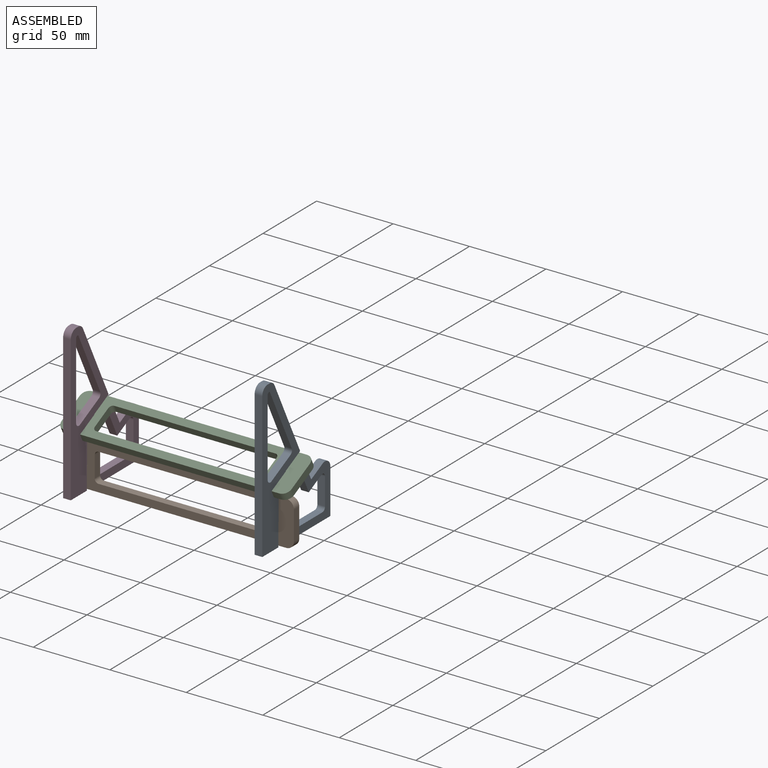
[diagram: assembled view]
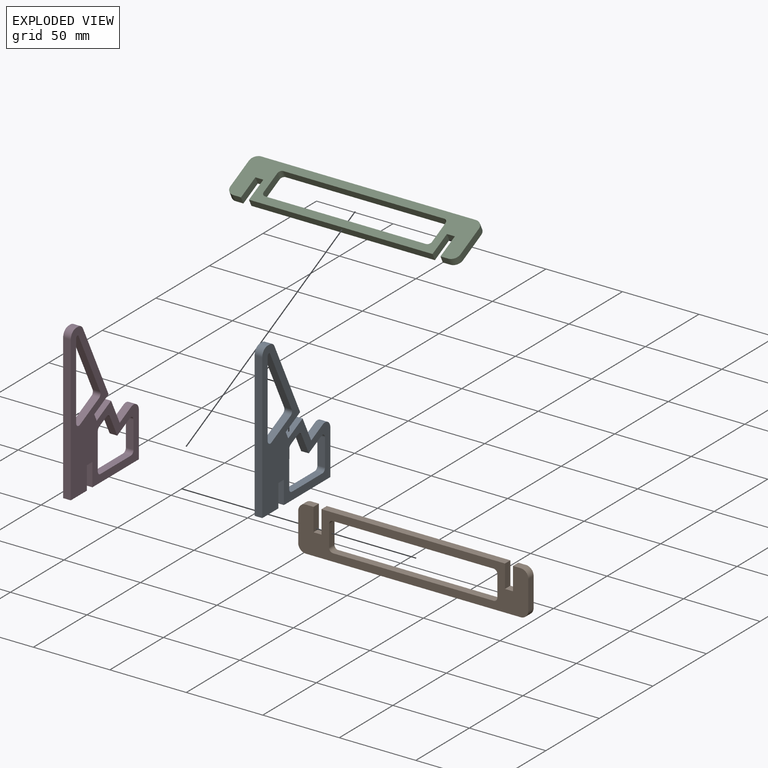
[diagram: exploded view]
GUIDED TOUR — MATED ASSEMBLY (Onshape document 1cfadd9997c3e9e91f9deba0, AutoMate assembly 1cfadd9997c3e9e91f9deba0_18e21f52ee919022d01cf52c_833649d1fe2a476c0644415b_default)

This assembly has 4 components, labeled P0..P3 below (a component is one placed occurrence of a part; the same part can appear more than once), held together by 3 mates. A mate is a constraint between two components; its type names the relative motion it leaves free:
  FASTENED — locks the two components together rigidly (no relative motion).
Axis/direction vectors are unit vectors and 'through' points are millimeter coordinates, both in the assembly's world frame.

MATES
  1. FASTENED "Fest 2": P0 <-> P1, direction (0.000, 0.000, -1.000) through (85.96, -73.56, 51.75) mm
  2. FASTENED "Fest 1": P1 <-> P3, direction (0.000, 0.000, 1.000) through (-39.24, -73.56, 51.75) mm
  3. FASTENED "Fest 3": P3 <-> P2, direction (0.000, 0.895, 0.446) through (-39.24, -68.11, 76.89) mm

ASSEMBLY ORDER
  1. P3 — the base component [order verified]
  2. P0 [order verified]
  3. P2 [order verified]
  4. P1 [order verified]
Order-tag legend:
  [order verified] — this step's position reverses a verified removal order: the component was checked to insert without passing through the ones already placed.

Of the 4 components, 2 carry the full construction recipe — the FeatureScript program that regenerates the part's solid from scratch; the rest are supplied as boundary geometry only.
Each toured component is shown spotlighted twice — in the assembled view, then in the exploded view, where a leader line traces a displaced component back to its assembled socket (saturated green if recipe-attached, orange if geometry-only; every other component desaturated gray) — followed by its recipe or geometry summary and the mates that hold it.
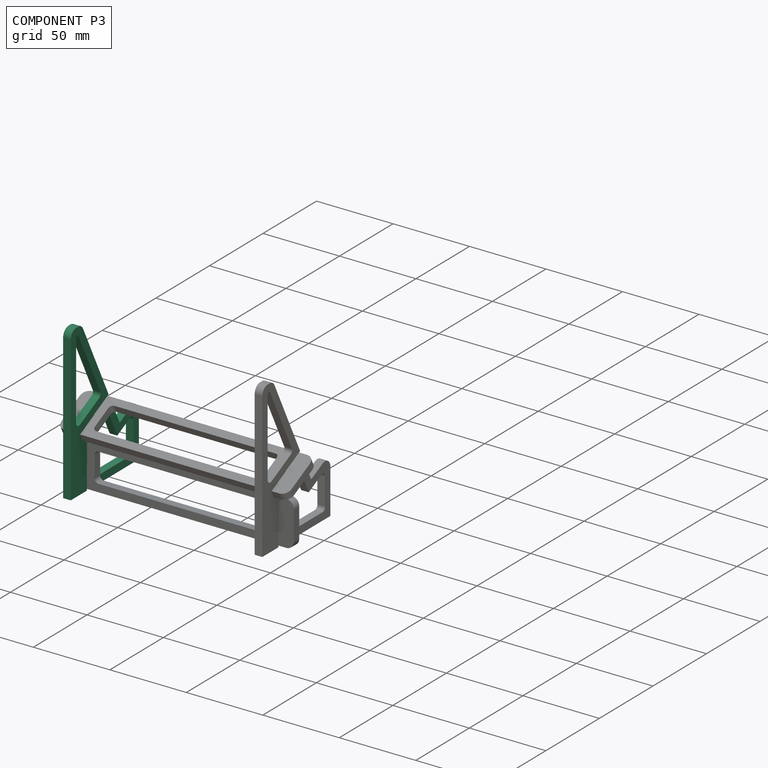
[diagram: component P3 — assembled]
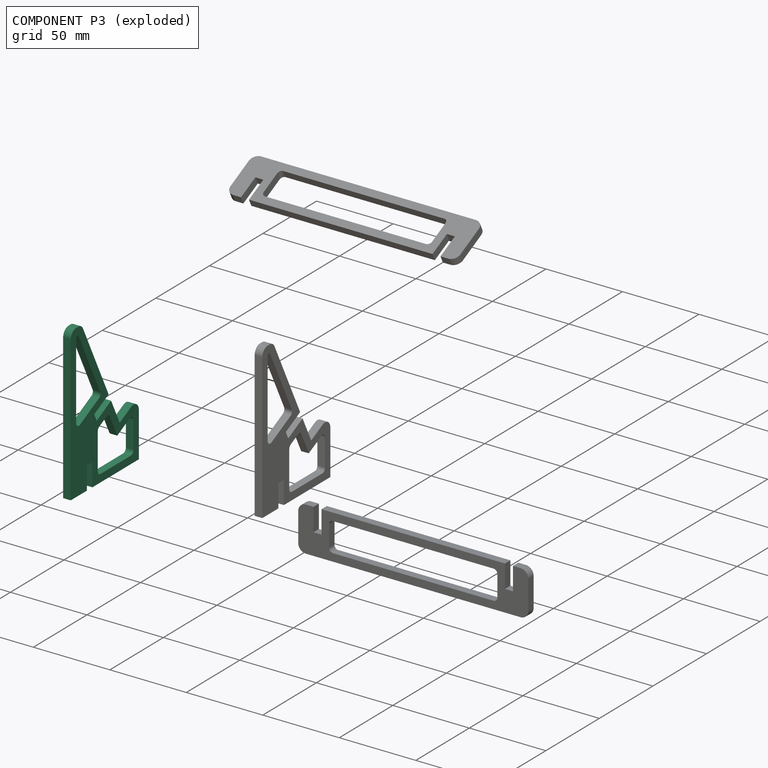
[diagram: component P3 — exploded]
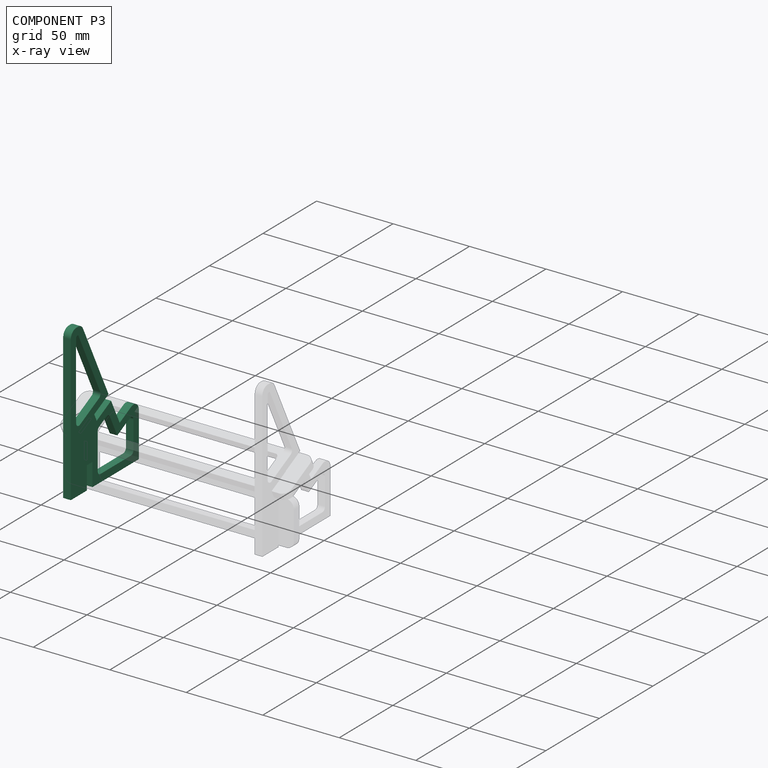
[diagram: component P3 — x-ray view]
COMPONENT P3 — same part as P0 (CADFS 00387855); its construction recipe is shown at P0.
Held by: FASTENED mate "Fest 1" to P1; FASTENED mate "Fest 3" to P2.
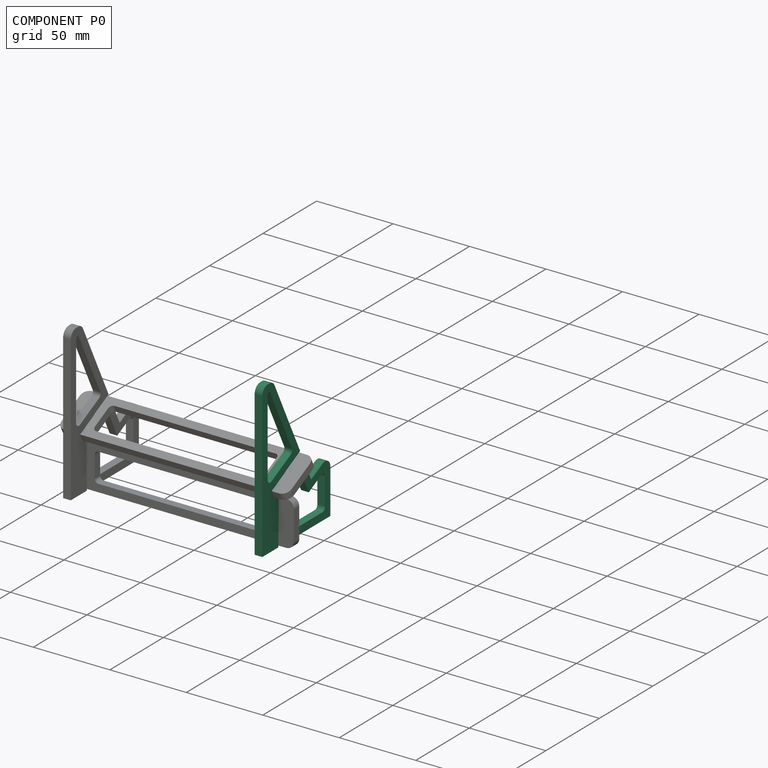
[diagram: component P0 — assembled]
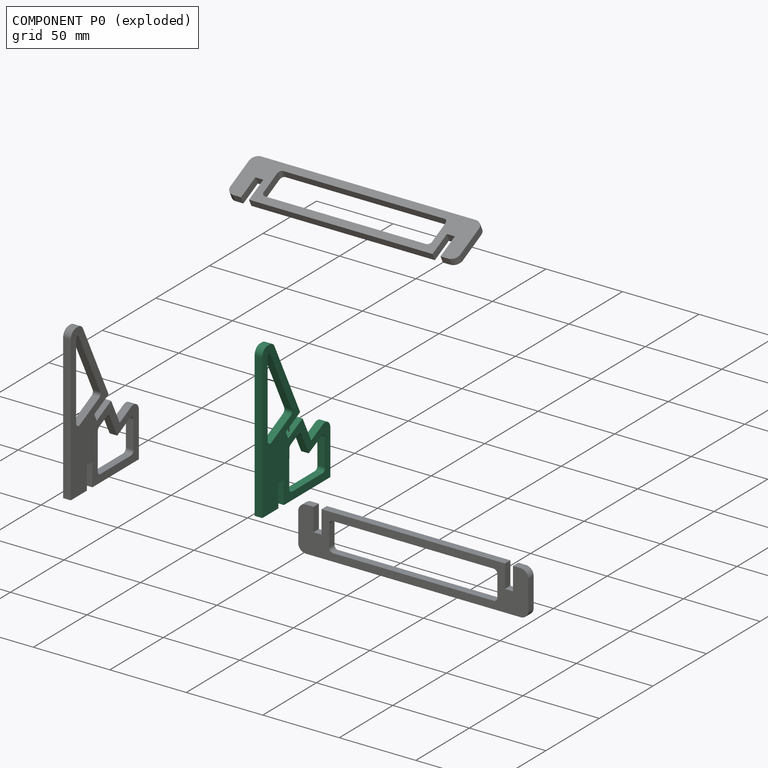
[diagram: component P0 — exploded]
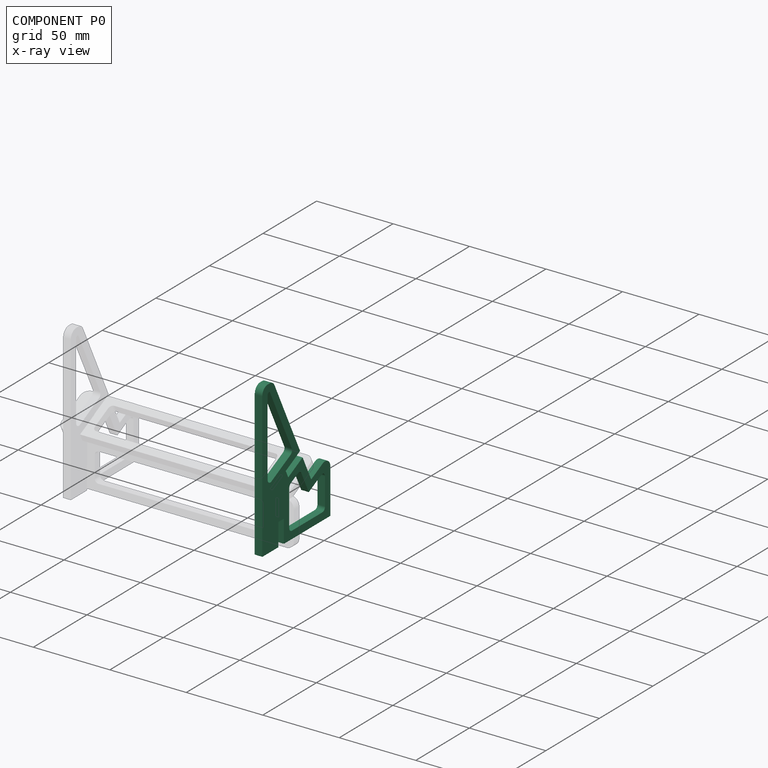
[diagram: component P0 — x-ray view]
COMPONENT P0 — recipe-attached (CADFS 00387855, mesh-verified: the recipe's output STEP matches this component's geometry to below the mesh-comparison resolution (tessellation chordal tolerance ~0.178 mm)).
Held by: FASTENED mate "Fest 2" to P1.
Construction recipe (FeatureScript — the CAD program that rebuilds this solid; sketch coordinates are in the units given by the * unit suffixes, e.g. mm):

FeatureScript 2506;
import(path : "onshape/std/geometry.fs", version : "2506.0");
import(path : "onshape/std/common.fs", version : "2506.0");
const mm = millimeter;
const VERTEX = EntityType.VERTEX;
const EDGE = EntityType.EDGE;
const FACE = EntityType.FACE;
const BODY = EntityType.BODY;
function v(x, y){return vector(x, y);}
function OD(order){return orderDisambiguation(order);}
function OSD(set){return originalSetDisambiguation(set);}
function TD(topology){return topologyDisambiguation(topology);}
function TDD(query){return trueDependencyDisambiguation(query);}
function sQuery(a, b, c) {return sketchEntityQuery(a, b, c);}

annotation { "Feature Type Name" : "Feature", "Feature Type Description" : "" }
export const myFeature = defineFeature(function(context is Context, id is Id, definition is map)
    precondition{}
    {
        {
            var Q0;
            Q0=qCreatedBy(makeId("Top.planeOp"),FACE);
            var sketch = newSketch(context, id + "F0", { "sketchPlane" : qUnion([Q0])});
            skLineSegment(sketch, "E0", {"start": v(28.14, 25.7) * mm, "end": v(28.14, -69.3) * mm});
            skLineSegment(sketch, "E1", {"start": v(23.14, 30.7) * mm, "end": v(21.23, 30.7) * mm});
            skLineSegment(sketch, "E2", {"start": v(16.76, 27.94) * mm, "end": v(-7.18, -20.13) * mm});
            skLineSegment(sketch, "E3", {"start": v(-17.52, -40.9) * mm, "end": v(-28.2, -35.59) * mm});
            skLineSegment(sketch, "E4", {"start": v(-35.43, -40.06) * mm, "end": v(-35.43, -69.3) * mm});
            skLineSegment(sketch, "E5", {"start": v(7.94, -69.3) * mm, "end": v(7.94, -54.3) * mm});
            skLineSegment(sketch, "E6", {"start": v(7.94, -54.3) * mm, "end": v(13.14, -54.3) * mm});
            skLineSegment(sketch, "E7", {"start": v(13.14, -54.3) * mm, "end": v(13.14, -69.3) * mm});
            skLineSegment(sketch, "E8", {"start": v(-35.43, -69.3) * mm, "end": v(7.94, -69.3) * mm});
            skLineSegment(sketch, "E9", {"start": v(13.14, -69.3) * mm, "end": v(28.14, -69.3) * mm});
            skPoint(sketch, "E10.visualSharp", {"position": v(18.14, 30.7) * mm});
            skArc(sketch, "E10.filletArc", {"start": v(21.23, 30.7) * mm, "mid": v(18.6, 29.96) * mm, "end": v(16.76, 27.94) * mm});
            skPoint(sketch, "E11.visualSharp", {"position": v(28.14, 30.7) * mm});
            skArc(sketch, "E11.filletArc", {"start": v(28.14, 25.7) * mm, "mid": v(26.67, 29.25) * mm, "end": v(23.14, 30.7) * mm});
            skPoint(sketch, "E12.visualSharp", {"position": v(-35.43, -31.99) * mm});
            skArc(sketch, "E12.filletArc", {"start": v(-28.2, -35.59) * mm, "mid": v(-33.06, -35.81) * mm, "end": v(-35.43, -40.06) * mm});
            skLineSegment(sketch, "E13", {"start": v(-7.18, -20.13) * mm, "end": v(6.25, -26.82) * mm});
            skLineSegment(sketch, "E14", {"start": v(6.25, -26.82) * mm, "end": v(3.93, -31.48) * mm});
            skLineSegment(sketch, "E15", {"start": v(3.93, -31.48) * mm, "end": v(-9.5, -24.79) * mm});
            skLineSegment(sketch, "E16.trimOffspring", {"start": v(-9.5, -24.79) * mm, "end": v(-17.52, -40.9) * mm});
            skLineSegment(sketch, "E17.0", {"start": v(21.94, 25.7) * mm, "end": v(21.91, 25.7) * mm});
            skLineSegment(sketch, "E17.1", {"start": v(20.93, 25.1) * mm, "end": v(0.64, -15.65) * mm});
            skLineSegment(sketch, "E17.2", {"start": v(1.76, -19) * mm, "end": v(12.95, -24.57) * mm});
            skLineSegment(sketch, "E17.3", {"start": v(2.94, -61.8) * mm, "end": v(2.94, -49.3) * mm});
            skLineSegment(sketch, "E17.7", {"start": v(-27.93, -64.3) * mm, "end": v(0.44, -64.3) * mm});
            skLineSegment(sketch, "E17.8", {"start": v(-30.43, -44.1) * mm, "end": v(-30.43, -61.8) * mm});
            skLineSegment(sketch, "E17.9", {"start": v(-15.28, -47.6) * mm, "end": v(-26.81, -41.86) * mm});
            skLineSegment(sketch, "E17.10", {"start": v(23.14, 24.5) * mm, "end": v(23.14, -25.61) * mm});
            skLineSegment(sketch, "E17.11", {"start": v(-8.37, -33.73) * mm, "end": v(-15.28, -47.6) * mm});
            skLineSegment(sketch, "E17.12", {"start": v(1.55, -35.88) * mm, "end": v(-5.02, -32.6) * mm});
            skLineSegment(sketch, "E18", {"start": v(12.95, -24.57) * mm, "end": v(19.52, -27.85) * mm});
            skLineSegment(sketch, "E19", {"start": v(2.94, -49.3) * mm, "end": v(2.94, -38.12) * mm});
            skPoint(sketch, "E20.visualSharp", {"position": v(23.14, -29.65) * mm});
            skArc(sketch, "E20.filletArc", {"start": v(19.52, -27.85) * mm, "mid": v(21.95, -27.74) * mm, "end": v(23.14, -25.61) * mm});
            skPoint(sketch, "E21.visualSharp", {"position": v(-0.48, -17.89) * mm});
            skArc(sketch, "E21.filletArc", {"start": v(0.64, -15.65) * mm, "mid": v(0.5, -17.56) * mm, "end": v(1.76, -19) * mm});
            skPoint(sketch, "E22.visualSharp", {"position": v(2.94, -36.57) * mm});
            skArc(sketch, "E22.filletArc", {"start": v(2.94, -38.12) * mm, "mid": v(2.56, -36.8) * mm, "end": v(1.55, -35.88) * mm});
            skPoint(sketch, "E23.visualSharp", {"position": v(-7.25, -31.5) * mm});
            skArc(sketch, "E23.filletArc", {"start": v(-5.02, -32.6) * mm, "mid": v(-6.92, -32.48) * mm, "end": v(-8.37, -33.73) * mm});
            skPoint(sketch, "E24.visualSharp", {"position": v(-15.28, -47.6) * mm});
            skLineSegment(sketch, "E24.filletArc", {"start": v(-15.28, -47.6) * mm, "end": v(-15.28, -47.6) * mm});
            skPoint(sketch, "E25.visualSharp", {"position": v(-30.43, -64.3) * mm});
            skArc(sketch, "E25.filletArc", {"start": v(-30.43, -61.8) * mm, "mid": v(-29.7, -63.56) * mm, "end": v(-27.93, -64.3) * mm});
            skPoint(sketch, "E26.visualSharp", {"position": v(2.94, -64.3) * mm});
            skArc(sketch, "E26.filletArc", {"start": v(0.44, -64.3) * mm, "mid": v(2.2, -63.56) * mm, "end": v(2.94, -61.8) * mm});
            skArc(sketch, "E27.filletArc", {"start": v(-26.81, -41.86) * mm, "mid": v(-29.24, -41.97) * mm, "end": v(-30.43, -44.1) * mm});
            skArc(sketch, "E28.filletArc", {"start": v(23.14, 24.5) * mm, "mid": v(22.79, 25.36) * mm, "end": v(21.94, 25.7) * mm});
            skArc(sketch, "E29.filletArc", {"start": v(21.91, 25.7) * mm, "mid": v(21.34, 25.54) * mm, "end": v(20.93, 25.1) * mm});
            skSolve(sketch);
        }
        {
            var Q0;
            Q0=qSketchRegion(id+"F0",true);
            extrude(context, id + "F1", {"entities" : qUnion([Q0]), "depth" : 5 * mm});
        }
    });
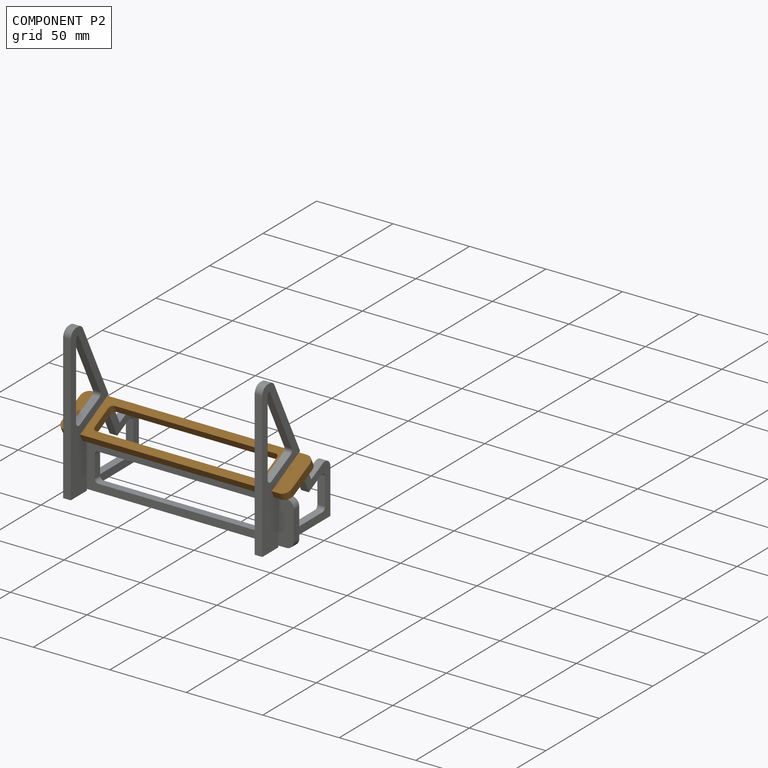
[diagram: component P2 — assembled]
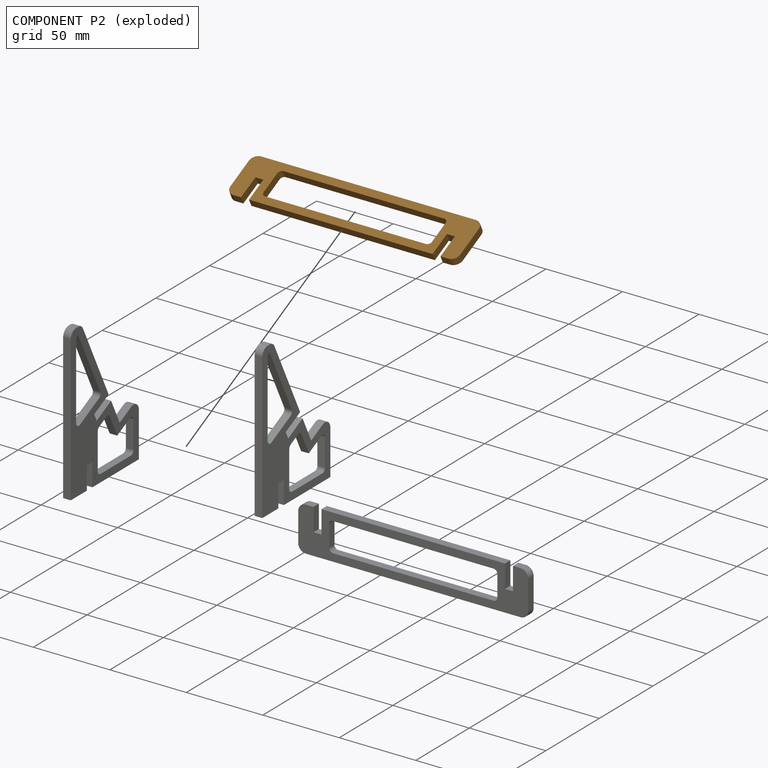
[diagram: component P2 — exploded]
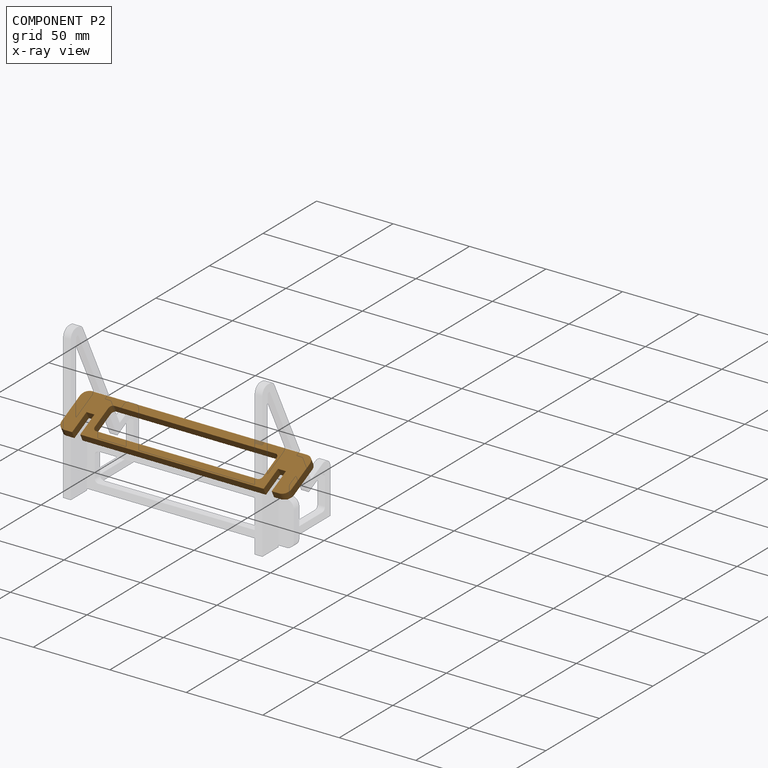
[diagram: component P2 — x-ray view]
COMPONENT P2 — geometry summary (no construction recipe available for this part):
  bounding box: 150.4 x 29.0 x 5.0 mm
  B-rep topology: 1 solid, 26 faces, 144 edges
  volume: 10498 mm^3 (48% of its bounding box)
  symmetry: 2-fold rotationally symmetric about the y axis; mirror-symmetric across its x mid-plane, z mid-plane
Held by: FASTENED mate "Fest 3" to P3.
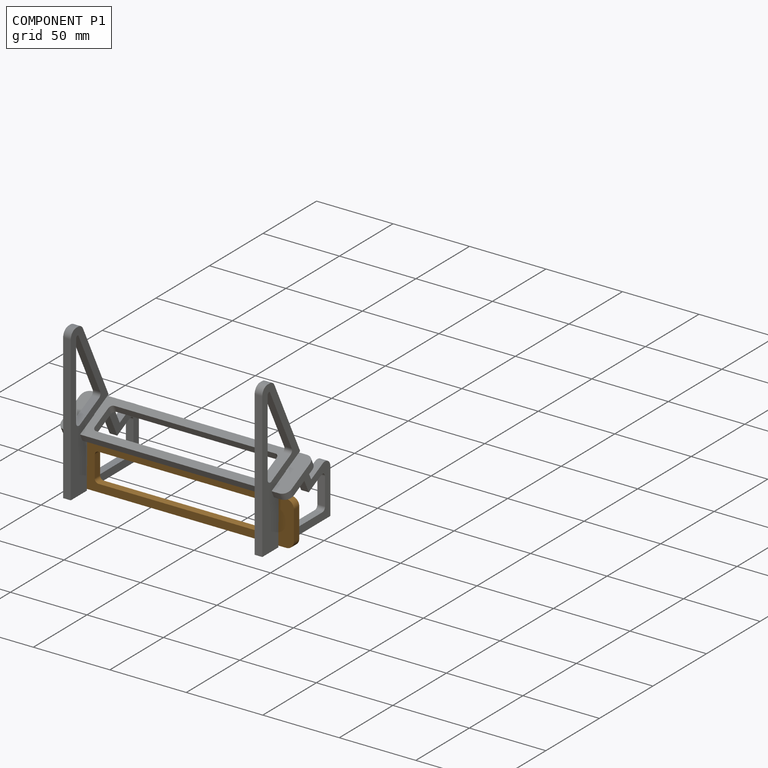
[diagram: component P1 — assembled]
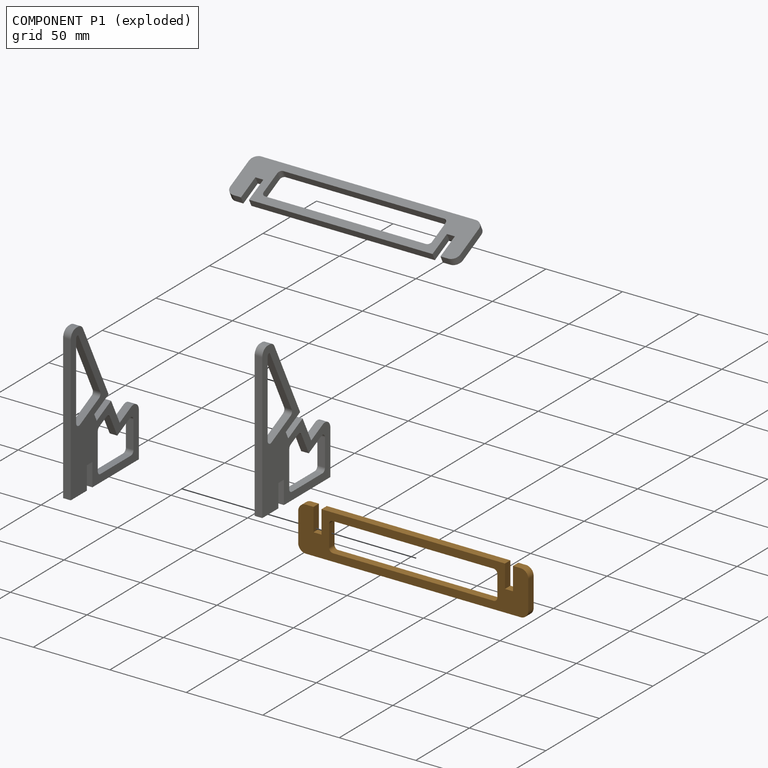
[diagram: component P1 — exploded]
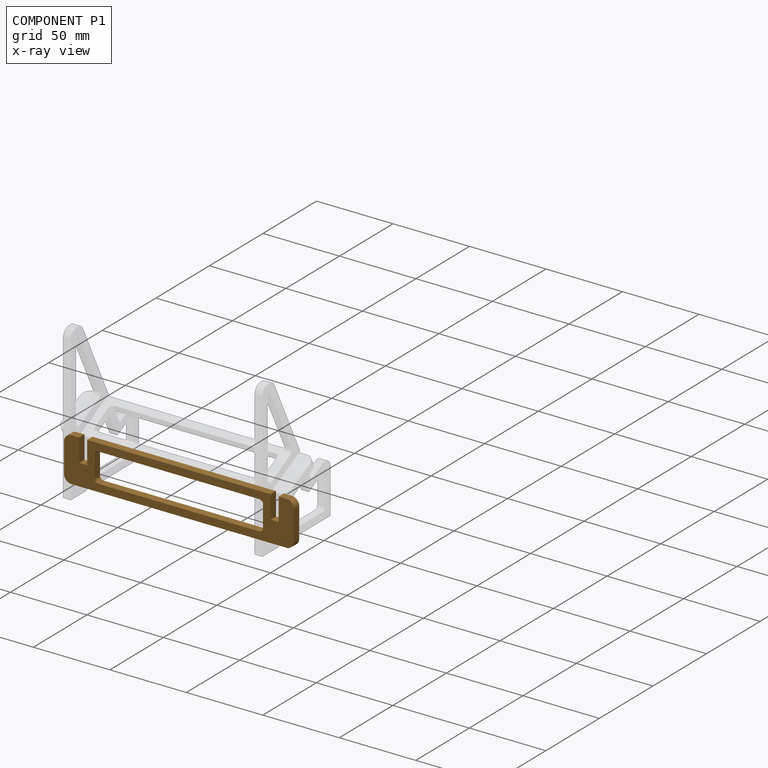
[diagram: component P1 — x-ray view]
COMPONENT P1 — geometry summary (no construction recipe available for this part):
  bounding box: 150.4 x 29.0 x 5.0 mm
  B-rep topology: 1 solid, 26 faces, 144 edges
  volume: 10498 mm^3 (48% of its bounding box)
  symmetry: 2-fold rotationally symmetric about the y axis; mirror-symmetric across its x mid-plane, z mid-plane
Held by: FASTENED mate "Fest 2" to P0; FASTENED mate "Fest 1" to P3.
PROVENANCE & LICENSES
Assembly (occurrences, transforms, mates, per-part STEP geometry): AutoMate dataset, Zenodo record 7776208, CC0.
Construction recipes: CADFS (HuggingFace VladPyatov/CADFS, CC-BY-4.0, layered over the ABC dataset), FeatureScript reconstruction programs keyed by ABC model id.
Join: ABC meta listings map ABC model id -> Onshape documentId; within a shared document, parts are matched by geometric signature (bounding-box dims + volume at 0.1% relative tolerance, exact B-rep face/solid counts).
Verification: 2 of this assembly's 4 components carry a recipe attachment, and every attachment is mesh-verified: the CADFS STEP and the AutoMate member STEP were compared as meshes in their shared local frame (symmetric sampled-point-to-mesh distance); worst across the 2 attachments: below the mesh-comparison resolution (tessellation chordal tolerance ~0.178 mm) on a 119 mm part.
Renders: orthographic iso camera (az 35 / el 25); the floor grid conveys scale (grid pitch printed in each image; no ruler). In the exploded view each component is displaced by its stored offset vector: the offsets alone carry the explosion direction (mate normal/axis signs are not orientation cues and do not encode it), and separation distances are assigned per mate-chain, not proportionally to assembly-order depth.
